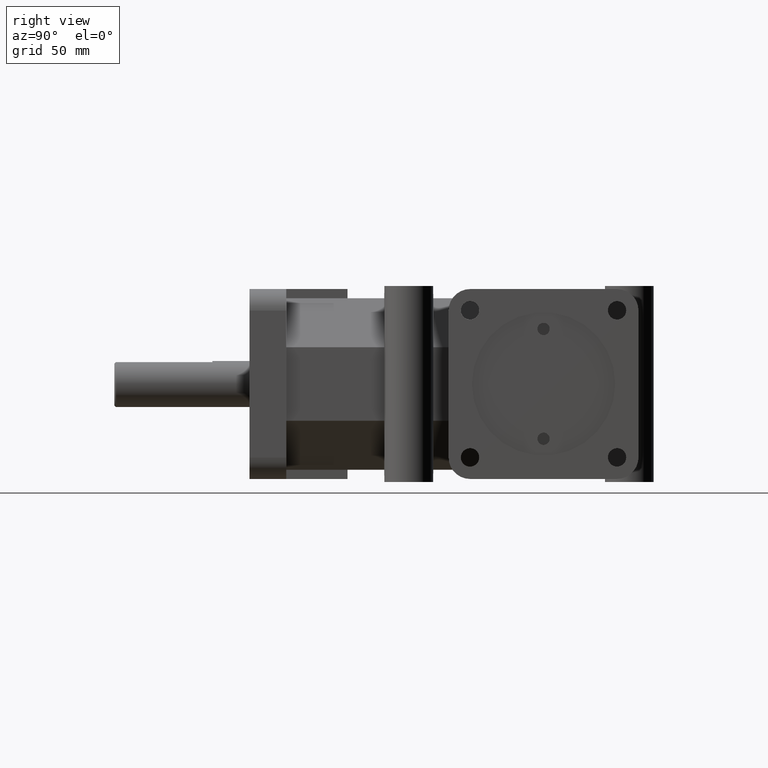
[diagram: clean part render]
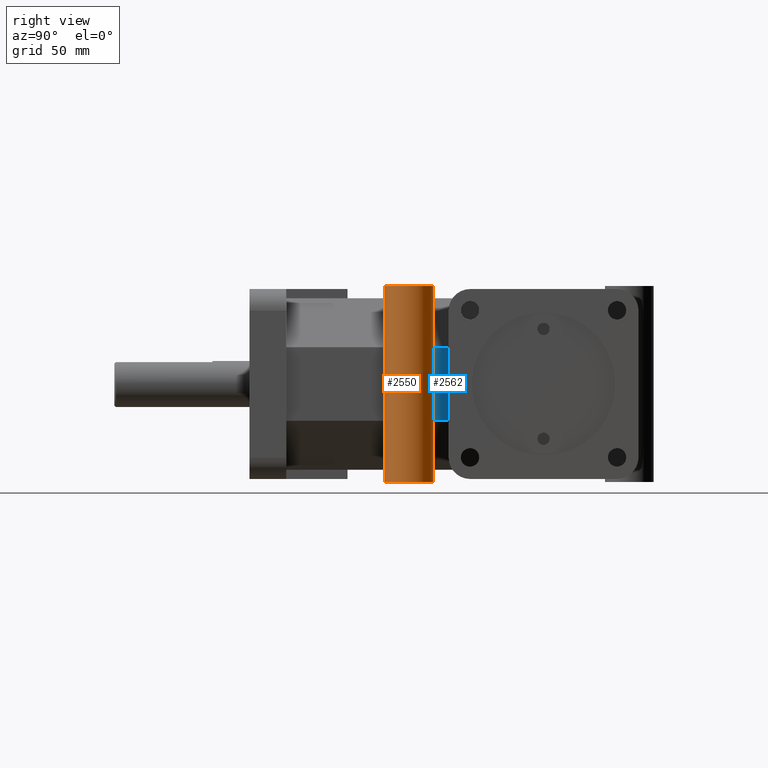
[diagram: same view with the hole feature highlighted: cylindrical wall and planar end face, labeled with their STEP entity ids]
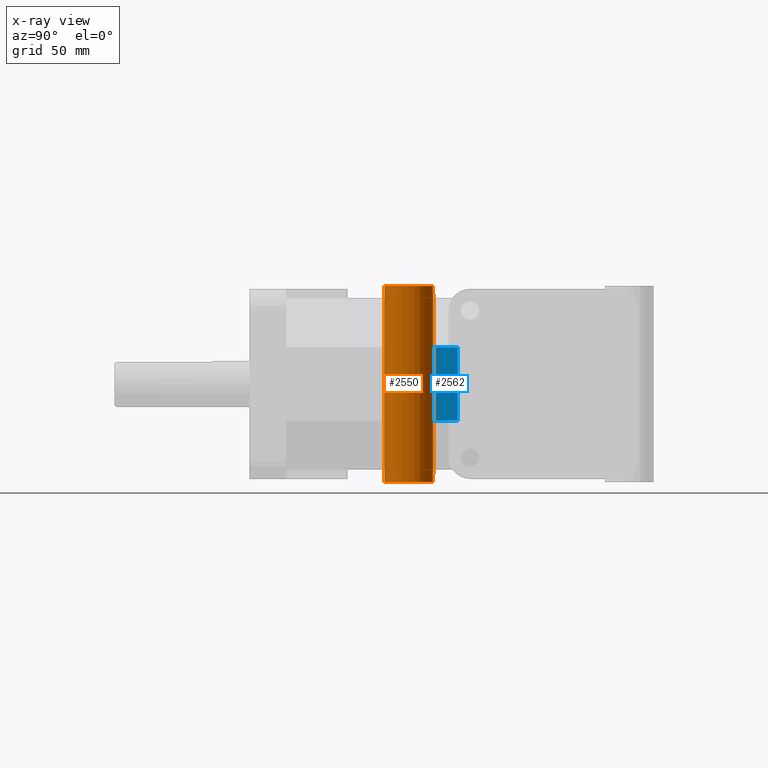
[diagram: x-ray of the same camera — body ghosted, the hole faces saturated]
A machine part, right view. The highlighted faces form one hole feature of diameter 25.4 mm: the cylindrical wall (entity #2550, orange) and its adjacent planar end face (entity #2562, blue) — they share a circular edge in the B-rep.
The next image is the same camera in x-ray (body ghosted, the hole faces saturated) — the bore reads through the body.
Wall:
#111=CYLINDRICAL_SURFACE('',#2810,12.7);
#113=CIRCLE('',#2605,12.7);
#114=CIRCLE('',#2606,12.7);
#203=CIRCLE('',#2781,12.7);
#204=CIRCLE('',#2783,12.7);
#205=CIRCLE('',#2785,12.7);
#206=CIRCLE('',#2786,12.7);
#320=FACE_OUTER_BOUND('',#498,.T.);
#498=EDGE_LOOP('',(#2141,#2142,#2143,#2144,#2145,#2146,#2147,#2148,#2149,
#2150,#2151,#2152,#2153,#2154,#2155,#2156));
#736=LINE('',#4205,#986);
#738=LINE('',#4209,#988);
#744=LINE('',#4221,#994);
#746=LINE('',#4225,#996);
#757=LINE('',#4242,#1007);
#758=LINE('',#4243,#1008);
#759=LINE('',#4244,#1009);
#760=LINE('',#4245,#1010);
#986=VECTOR('',#3436,1.);
#988=VECTOR('',#3440,1.);
#994=VECTOR('',#3452,1.);
#996=VECTOR('',#3456,1.);
#1007=VECTOR('',#3475,12.7);
#1008=VECTOR('',#3476,1.);
#1009=VECTOR('',#3477,12.7);
#1010=VECTOR('',#3478,1.);
#1064=VERTEX_POINT('',#3623);
#1065=VERTEX_POINT('',#3625);
#1066=VERTEX_POINT('',#3627);
#1238=VERTEX_POINT('',#4136);
#1239=VERTEX_POINT('',#4139);
#1240=VERTEX_POINT('',#4142);
#1241=VERTEX_POINT('',#4143);
#1242=VERTEX_POINT('',#4145);
#1263=VERTEX_POINT('',#4203);
#1264=VERTEX_POINT('',#4207);
#1267=VERTEX_POINT('',#4219);
#1268=VERTEX_POINT('',#4223);
#1294=EDGE_CURVE('',#1064,#1065,#113,.T.);
#1295=EDGE_CURVE('',#1065,#1066,#114,.T.);
#1538=EDGE_CURVE('',#1238,#1238,#203,.T.);
#1539=EDGE_CURVE('',#1239,#1239,#204,.T.);
#1540=EDGE_CURVE('',#1240,#1241,#205,.T.);
#1541=EDGE_CURVE('',#1241,#1242,#206,.T.);
#1570=EDGE_CURVE('',#1240,#1263,#736,.T.);
#1572=EDGE_CURVE('',#1264,#1066,#738,.T.);
#1578=EDGE_CURVE('',#1242,#1267,#744,.T.);
#1580=EDGE_CURVE('',#1268,#1064,#746,.T.);
#1591=EDGE_CURVE('',#1239,#1065,#757,.T.);
#1592=EDGE_CURVE('',#1267,#1268,#758,.T.);
#1593=EDGE_CURVE('',#1241,#1238,#759,.T.);
#1594=EDGE_CURVE('',#1264,#1263,#760,.T.);
#2141=ORIENTED_EDGE('',*,*,#1539,.T.);
#2142=ORIENTED_EDGE('',*,*,#1591,.T.);
#2143=ORIENTED_EDGE('',*,*,#1294,.F.);
#2144=ORIENTED_EDGE('',*,*,#1580,.F.);
#2145=ORIENTED_EDGE('',*,*,#1592,.F.);
#2146=ORIENTED_EDGE('',*,*,#1578,.F.);
#2147=ORIENTED_EDGE('',*,*,#1541,.F.);
#2148=ORIENTED_EDGE('',*,*,#1593,.T.);
#2149=ORIENTED_EDGE('',*,*,#1538,.T.);
#2150=ORIENTED_EDGE('',*,*,#1593,.F.);
#2151=ORIENTED_EDGE('',*,*,#1540,.F.);
#2152=ORIENTED_EDGE('',*,*,#1570,.T.);
#2153=ORIENTED_EDGE('',*,*,#1594,.F.);
#2154=ORIENTED_EDGE('',*,*,#1572,.T.);
#2155=ORIENTED_EDGE('',*,*,#1295,.F.);
#2156=ORIENTED_EDGE('',*,*,#1591,.F.);
#2550=ADVANCED_FACE('',(#320),#111,.T.);
#2605=AXIS2_PLACEMENT_3D('',#3626,#2870,#2871);
#2606=AXIS2_PLACEMENT_3D('',#3628,#2872,#2873);
#2781=AXIS2_PLACEMENT_3D('',#4137,#3372,#3373);
#2783=AXIS2_PLACEMENT_3D('',#4140,#3376,#3377);
#2785=AXIS2_PLACEMENT_3D('',#4144,#3380,#3381);
#2786=AXIS2_PLACEMENT_3D('',#4146,#3382,#3383);
#2810=AXIS2_PLACEMENT_3D('',#4241,#3473,#3474);
#2870=DIRECTION('center_axis',(0.,0.,1.));
#2871=DIRECTION('ref_axis',(1.,0.,0.));
#2872=DIRECTION('center_axis',(0.,0.,1.));
#2873=DIRECTION('ref_axis',(1.,0.,0.));
#3372=DIRECTION('center_axis',(0.,0.,-1.));
#3373=DIRECTION('ref_axis',(1.,0.,0.));
#3376=DIRECTION('center_axis',(0.,0.,1.));
#3377=DIRECTION('ref_axis',(1.,0.,0.));
#3380=DIRECTION('center_axis',(0.,0.,-1.));
#3381=DIRECTION('ref_axis',(1.,0.,0.));
#3382=DIRECTION('center_axis',(0.,0.,-1.));
#3383=DIRECTION('ref_axis',(1.,0.,0.));
#3436=DIRECTION('',(0.,0.,-1.));
#3440=DIRECTION('',(0.,0.,-1.));
#3452=DIRECTION('',(0.,0.,-1.));
#3456=DIRECTION('',(0.,0.,-1.));
#3473=DIRECTION('center_axis',(0.,0.,-1.));
#3474=DIRECTION('ref_axis',(1.,0.,0.));
#3475=DIRECTION('',(0.,0.,1.));
#3476=DIRECTION('',(0.,0.,-1.));
#3477=DIRECTION('',(0.,0.,1.));
#3478=DIRECTION('',(0.,0.,1.));
#3623=CARTESIAN_POINT('',(44.4500000000001,95.25,-44.45));
#3625=CARTESIAN_POINT('',(31.75,82.55,-44.45));
#3626=CARTESIAN_POINT('Origin',(44.45,82.55,-44.45));
#3627=CARTESIAN_POINT('',(44.45,69.85,-44.45));
#3628=CARTESIAN_POINT('Origin',(44.45,82.55,-44.45));
#4136=CARTESIAN_POINT('',(31.75,82.55,50.8));
#4137=CARTESIAN_POINT('Origin',(44.45,82.55,50.8));
#4139=CARTESIAN_POINT('',(31.75,82.55,-50.8));
#4140=CARTESIAN_POINT('Origin',(44.45,82.55,-50.8));
#4142=CARTESIAN_POINT('',(44.45,69.85,44.45));
#4143=CARTESIAN_POINT('',(31.75,82.55,44.45));
#4144=CARTESIAN_POINT('Origin',(44.45,82.55,44.45));
#4145=CARTESIAN_POINT('',(44.4500000000001,95.25,44.45));
#4146=CARTESIAN_POINT('Origin',(44.45,82.55,44.45));
#4203=CARTESIAN_POINT('',(44.45,69.85,19.05));
#4205=CARTESIAN_POINT('',(44.45,69.85,0.));
#4207=CARTESIAN_POINT('',(44.45,69.85,-19.05));
#4209=CARTESIAN_POINT('',(44.45,69.85,0.));
#4219=CARTESIAN_POINT('',(44.4500000000001,95.25,19.0499999999999));
#4221=CARTESIAN_POINT('',(44.4500000000001,95.25,0.));
#4223=CARTESIAN_POINT('',(44.4500000000001,95.25,-19.0499999999999));
#4225=CARTESIAN_POINT('',(44.4500000000001,95.25,0.));
#4241=CARTESIAN_POINT('Origin',(44.45,82.55,0.));
#4242=CARTESIAN_POINT('',(31.75,82.55,0.));
#4243=CARTESIAN_POINT('',(44.45,95.25,0.));
#4244=CARTESIAN_POINT('',(31.75,82.55,0.));
#4245=CARTESIAN_POINT('',(44.45,69.85,0.));
End face:
#332=FACE_OUTER_BOUND('',#510,.T.);
#510=EDGE_LOOP('',(#2204,#2205,#2206,#2207));
#758=LINE('',#4243,#1008);
#771=LINE('',#4266,#1021);
#778=LINE('',#4281,#1028);
#779=LINE('',#4282,#1029);
#1008=VECTOR('',#3476,1.);
#1021=VECTOR('',#3503,1.);
#1028=VECTOR('',#3520,1.);
#1029=VECTOR('',#3521,1.);
#1083=VERTEX_POINT('',#3667);
#1085=VERTEX_POINT('',#3673);
#1267=VERTEX_POINT('',#4219);
#1268=VERTEX_POINT('',#4223);
#1592=EDGE_CURVE('',#1267,#1268,#758,.T.);
#1605=EDGE_CURVE('',#1085,#1268,#771,.T.);
#1612=EDGE_CURVE('',#1083,#1085,#778,.T.);
#1613=EDGE_CURVE('',#1267,#1083,#779,.T.);
#2204=ORIENTED_EDGE('',*,*,#1592,.T.);
#2205=ORIENTED_EDGE('',*,*,#1605,.F.);
#2206=ORIENTED_EDGE('',*,*,#1612,.F.);
#2207=ORIENTED_EDGE('',*,*,#1613,.F.);
#2417=PLANE('',#2822);
#2562=ADVANCED_FACE('',(#332),#2417,.T.);
#2822=AXIS2_PLACEMENT_3D('',#4280,#3518,#3519);
#3476=DIRECTION('',(0.,0.,-1.));
#3503=DIRECTION('',(0.,-1.,0.));
#3518=DIRECTION('center_axis',(1.,0.,0.));
#3519=DIRECTION('ref_axis',(0.,-1.,0.));
#3520=DIRECTION('',(0.,0.,-1.));
#3521=DIRECTION('',(0.,1.,0.));
#3667=CARTESIAN_POINT('',(44.45,107.95,19.05));
#3673=CARTESIAN_POINT('',(44.45,107.95,-19.05));
#4219=CARTESIAN_POINT('',(44.4500000000001,95.25,19.0499999999999));
#4223=CARTESIAN_POINT('',(44.4500000000001,95.25,-19.0499999999999));
#4243=CARTESIAN_POINT('',(44.45,95.25,0.));
#4266=CARTESIAN_POINT('',(44.45,64.2356707317073,-19.05));
#4280=CARTESIAN_POINT('Origin',(44.45,19.05,0.));
#4281=CARTESIAN_POINT('',(44.45,107.95,0.));
#4282=CARTESIAN_POINT('',(44.45,64.2356707317073,19.05));